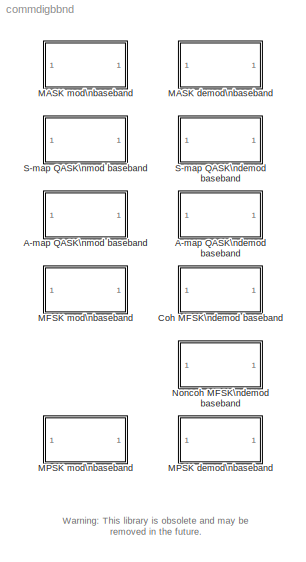
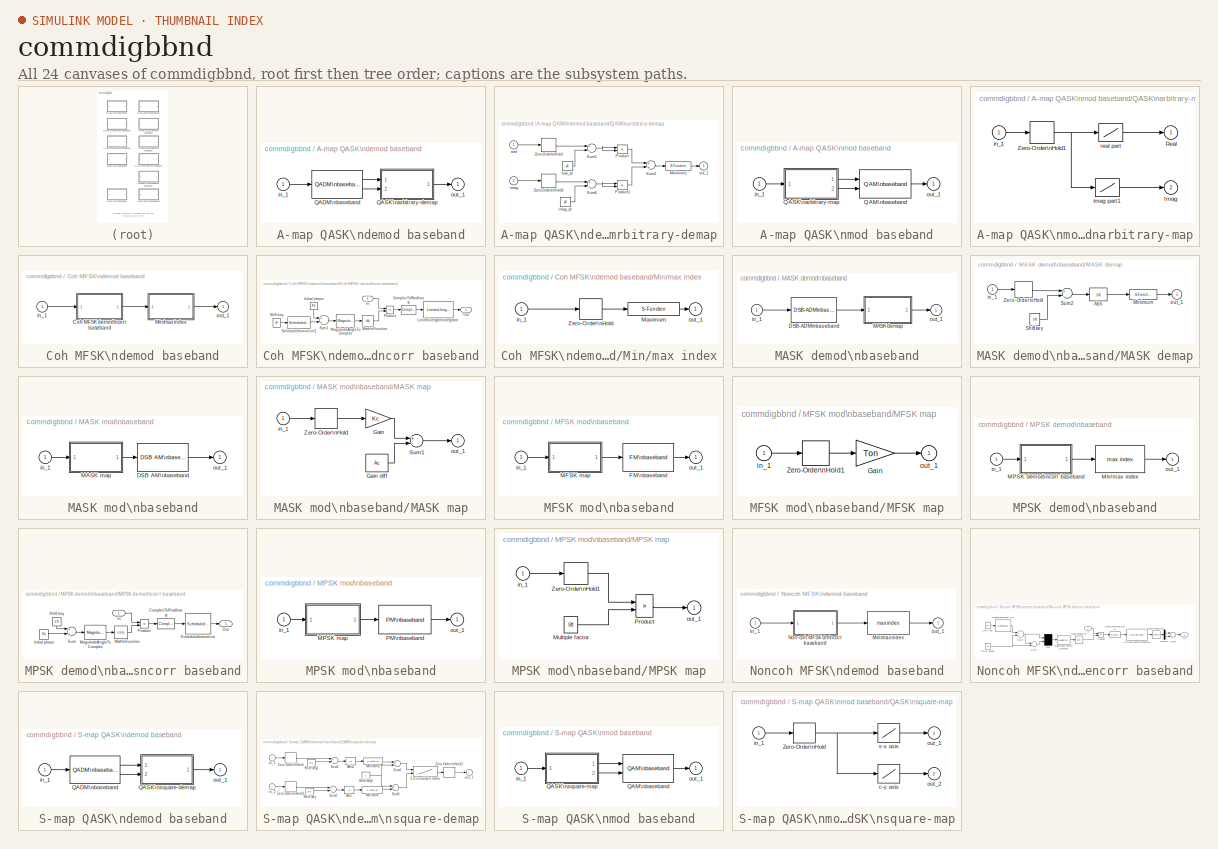
[diagram: thumbnail index - all 24 canvases of the model, root first then tree order]
MODEL commdigbbnd
KIND library
BLOCK [SubSystem] A-map QASK\ndemod baseband
  MaskCallbackString = |||||
  MaskDescription = Demodulate the complex envelope of a QASK modulated signal. The arbitrary constellation is defined by in-phase and quadrature vectors.
  MaskDisplay = plot(0,0,100,100,[5+1.5*[[0:.8:10] [10 20] [20:.8:30]] 50 50 50 50+15*[0 1 1 2 2 3]],[85+10*[sin([0:.8:10]*pi*2/5) 0 0 sin([20:.8:30]*pi*2/5)] 85 99 75 85+8*[1 1 -1 -1 1 1]]);\ndisp('A-QASK')
  MaskEnableString = on,on,on,on,on,on
  MaskHelp = This block demodulates the complex envelope of a QASK modulated signal with user-defined arbitrary constellation. The vector length of the in-phase and quadrature components vectors should have the same length. The outputs are integers in the range [0, M-1], where M is the vector length of in-phase or quadrature. When the symbol interval is a two-element vector, the second element is the offset (d...<+10ch>
  MaskIconFrame = on
  MaskIconOpaque = on
  MaskIconRotate = none
  MaskIconUnits = autoscale
  MaskInitialization = den=num(2,:);num=num(1,:);\n\n
  MaskPromptString = Constellation in-phase component:|Constellation quadrature component:|Symbol interval and offset (sec):|Lowpass filter [num; den], a 2 row matrix:|Initial phase (rad):|Sample time (sec):
  MaskStyleString = edit,edit,edit,edit,edit,edit
  MaskToolTipString = on,on,on,on,on,on
  MaskTunableValueString = on,on,on,on,on,on
  MaskType = Baseband A-QASK demodulation
  MaskValueString = real(exp(j*[0:16-1]/16*pi*2))|imag(exp(j*[0:16-1]/16*pi*2))|0.1|[1;1]|0|0.001
  MaskVarAliasString = ,,,,,
  MaskVariables = y1=@1;y2=@2;td=@3;num=@4;Ph=@5;ts=@6;
  MaskVisibilityString = on,on,on,on,on,on
  Ports = [1, 1]
  TreatAsAtomicUnit = off
BLOCK [Reference] A-map QASK\ndemod baseband/QADM\nbaseband  REF=commanabbnd/QADM\nbaseband
  Ph = Ph
  Ports = [1, 2]
  SourceBlock = commanabbnd/QADM\nbaseband
  SourceType = QM DSB-SC ADM CE
  den = den
  num = num
  ts = ts
BLOCK [SubSystem] A-map QASK\ndemod baseband/QASK\narbitrary-demap
  MaskCallbackString = ||
  MaskDescription = Reverse the QASK map. Input in-phase and quadrature components from the two inputs. Output demapped signal.
  MaskDisplay = disp('QASK\\nA-demap')
  MaskEnableString = on,on,on
  MaskHelp = This block demaps a QASK mapped signal using user defined arbitrary constellation. You can place this block after a QAM demodulation block. The in-phase and quadrature constellation vectors must have the same length, which equals to M, the M-ary number of the QASK. The output symbols are integers in the range [0, M-1]. The symbol interval can be a two elements vector with the first element being o...<+34ch>
  MaskIconFrame = on
  MaskIconOpaque = on
  MaskIconRotate = none
  MaskIconUnits = autoscale
  MaskPromptString = Constellation for in-phase component:|Constellation for quadrature component:|Symbol interval and offset (sec):
  MaskStyleString = edit,edit,edit
  MaskToolTipString = on,on,on
  MaskTunableValueString = on,on,on
  MaskType = QASK A-demap
  MaskValueString = y1|y2|td
  MaskVarAliasString = ,,
  MaskVariables = y1=@1;y2=@2;td=@3;
  MaskVisibilityString = on,on,on
  Ports = [2, 1]
  TreatAsAtomicUnit = off
BLOCK [S-Function] A-map QASK\ndemod baseband/QASK\narbitrary-demap/Minimum1
  FunctionName = arymimai
  Parameters = 'min'
  Ports = [1, 1]
BLOCK [Product] A-map QASK\ndemod baseband/QASK\narbitrary-demap/Product
  Ports = [2, 1]
BLOCK [Product] A-map QASK\ndemod baseband/QASK\narbitrary-demap/Product1
  Ports = [2, 1]
BLOCK [Sum] A-map QASK\ndemod baseband/QASK\narbitrary-demap/Sum1
  Inputs = +-
  Ports = [2, 1]
BLOCK [Sum] A-map QASK\ndemod baseband/QASK\narbitrary-demap/Sum2
  Ports = [2, 1]
BLOCK [Sum] A-map QASK\ndemod baseband/QASK\narbitrary-demap/Sum6
  Inputs = +-
  Ports = [2, 1]
BLOCK [ZeroOrderHold] A-map QASK\ndemod baseband/QASK\narbitrary-demap/Zero-Order\nHold
  SampleTime = td
BLOCK [ZeroOrderHold] A-map QASK\ndemod baseband/QASK\narbitrary-demap/Zero-Order\nHold1
  SampleTime = td
BLOCK [Inport] A-map QASK\ndemod baseband/QASK\narbitrary-demap/imag
  Port = 2
BLOCK [Constant] A-map QASK\ndemod baseband/QASK\narbitrary-demap/imag_pt
  Value = y2
BLOCK [Outport] A-map QASK\ndemod baseband/QASK\narbitrary-demap/out_1
  InitialOutput = 0
BLOCK [Inport] A-map QASK\ndemod baseband/QASK\narbitrary-demap/real
BLOCK [Constant] A-map QASK\ndemod baseband/QASK\narbitrary-demap/real_pt
  Value = y1
BLOCK [Inport] A-map QASK\ndemod baseband/in_1
BLOCK [Outport] A-map QASK\ndemod baseband/out_1
  InitialOutput = 0
BLOCK [SubSystem] A-map QASK\nmod baseband
  MaskCallbackString = ||||
  MaskDescription = Output the complex envelope of QASK modulation. The arbitrary constellation is defined by in-phase and quadrature vectors.
  MaskDisplay = plot(0,0,100,100,[5+15*[0 1 1 2 2 3] 50 50 50 50+1.5*[[0:.8:10] [10 20] [20:.8:30]]],[85+8*[1 1 -1 -1 1 1] 85 99 75 85+10*[sin([0:.8:10]*pi*2/5) 0 0 sin([20:.8:30]*pi*2/5)]]);\ndisp('A-QASK')
  MaskEnableString = on,on,on,on,on
  MaskHelp = This block outputs the complex envelope of a QASK modulated signal with user-defined arbitrary constellation. The vector length of the in-phase and quadrature components vectors should be the same length. The inputs are integers in the range [0, M-1], where M is the vector length of in-phase or quadrature. When the symbol interval is a two-element vector, the second element is the offset (default ...<+3ch>
  MaskIconFrame = on
  MaskIconOpaque = on
  MaskIconRotate = none
  MaskIconUnits = autoscale
  MaskPromptString = Constellation in-phase component:|Constellation quadrature component:|Input symbol interval and offset (sec):|Initial phase (rad):|Sample time (sec):
  MaskStyleString = edit,edit,edit,edit,edit
  MaskToolTipString = on,on,on,on,on
  MaskTunableValueString = on,on,on,on,on
  MaskType = Baseband A-QASK modulation
  MaskValueString = real(exp(j*[0:16-1]/16*pi*2))|imag(exp(j*[0:16-1]/16*pi*2))|0.1|0|0.001
  MaskVarAliasString = ,,,,
  MaskVariables = y1=@1;y2=@2;td=@3;Ph=@4;ts=@5;
  MaskVisibilityString = on,on,on,on,on
  Ports = [1, 1]
  TreatAsAtomicUnit = off
BLOCK [Reference] A-map QASK\nmod baseband/QAM\nbaseband  REF=commanabbnd/QAM\nbaseband
  Ph = Ph
  Ports = [2, 1]
  SourceBlock = commanabbnd/QAM\nbaseband
  SourceType = QM DSB-SC AM CE
BLOCK [SubSystem] A-map QASK\nmod baseband/QASK\narbitrary-map
  MaskCallbackString = ||
  MaskDescription = QASK mapping for arbitrary defined map. Assume input digit is K. 1st outport outputs in-phase(K+1). 2nd outport outputs quadrature(K+1).
  MaskDisplay = disp('QASK\\nA-map')
  MaskEnableString = on,on,on
  MaskHelp = This block maps a digital signal onto in-phase and quadratic components, which are outputs in the first and second output port respectively. The in-phase and quadrature constellation vectors must have the same length, which equals to M, the M-ary number of the QASK. The input signal is in the range of [0, M-1]. The symbol interval can be a two elements vector with the first element being offset. T...<+26ch>
  MaskIconFrame = on
  MaskIconOpaque = on
  MaskIconRotate = none
  MaskIconUnits = autoscale
  MaskInitialization = ly=length(y1);x=[-10 1:ly-1;1:ly-1 10*ly]-.5;x=x(:);y1=y1(:)';y1=[y1;y1];y1=y1(:);y2=y2(:)';y2=[y2;y2];y2=y2(:);
  MaskPromptString = Constellation for in-phase component:|Constellation for quadrature component:|Symbol interval and offset (sec):
  MaskStyleString = edit,edit,edit
  MaskToolTipString = on,on,on
  MaskTunableValueString = on,on,on
  MaskType = QASK A-map
  MaskValueString = y1|y2|td
  MaskVarAliasString = ,,
  MaskVariables = y1=@1;y2=@2;td=@3;
  MaskVisibilityString = on,on,on
  Ports = [1, 2]
  TreatAsAtomicUnit = off
BLOCK [Outport] A-map QASK\nmod baseband/QASK\narbitrary-map/Imag
  InitialOutput = 0
  Port = 2
BLOCK [Outport] A-map QASK\nmod baseband/QASK\narbitrary-map/Real
  InitialOutput = 0
BLOCK [ZeroOrderHold] A-map QASK\nmod baseband/QASK\narbitrary-map/Zero-Order\nHold1
  SampleTime = td
BLOCK [Lookup] A-map QASK\nmod baseband/QASK\narbitrary-map/imag part1
  InputValues = x
  OutputValues = y2
BLOCK [Inport] A-map QASK\nmod baseband/QASK\narbitrary-map/in_1
BLOCK [Lookup] A-map QASK\nmod baseband/QASK\narbitrary-map/real part
  InputValues = x
  OutputValues = y1
BLOCK [Inport] A-map QASK\nmod baseband/in_1
BLOCK [Outport] A-map QASK\nmod baseband/out_1
  InitialOutput = 0
BLOCK [SubSystem] Coh MFSK\ndemod baseband
  MaskCallbackString = ||||
  MaskDescription = Demodulate the complex envelope of a MFSK modulated signal using coherent correlation method.
  MaskDisplay = plot(0,0,100,100,[5+1.5*[[0:.8:10] [10:1.6:20] [20:.8:30]] 50 50 50 50+15*[0 1 1 2 2 3]],[85+10*[sin([0:.8:10]*pi*2/5) sin([10:1.6:20]*pi/5) sin([20:.8:30]*pi*2/5)] 85 99 75 85+8*[1 1 -1 -1 1 1]]);\ndisp(' Co-MFSK')
  MaskEnableString = on,on,on,on,on
  MaskHelp = This block demodulates the complex envelope of a MFSK modulated signal using coherent method. The coherence demodulation method is phase sensitive. The tone space is the frequency distance between two successive after the modulation. The inputs are integers in the range [0, M-1], where M is the M-ary number. When the symbol interval is a two-element vector, the second element is the offset (defaul...<+5ch>
  MaskIconFrame = on
  MaskIconOpaque = on
  MaskIconRotate = none
  MaskIconUnits = autoscale
  MaskPromptString = M-ary number (output digits in range [0, M-1]):|Tone space (Hz):|Symbol interval (sec):|Initial phase (rad):|Sample time (sec):
  MaskStyleString = edit,edit,edit,edit,edit
  MaskToolTipString = on,on,on,on,on
  MaskTunableValueString = on,on,on,on,on
  MaskType = Baseband coherent MFSK demodulation
  MaskValueString = 16|16/.2/5|0.1|0|0.001
  MaskVarAliasString = ,,,,
  MaskVariables = M=@1;Ton=@2;td=@3;Ph=@4;ts=@5;
  MaskVisibilityString = on,on,on,on,on
  Ports = [1, 1]
  TreatAsAtomicUnit = off
BLOCK [SubSystem] Coh MFSK\ndemod baseband/Coh MFSK demod\ncorr baseband
  MaskCallbackString = ||||
  MaskDescription = Compute baseband MFSK correlation. Take MFSK CE modulated signal. Output a vector of correlation result.
  MaskDisplay = plot(0,0,100,100,[4 16 10 4 16 10 10 10],[54 46 50 46 54 50 58 42]);\ndisp('   Co MFSK')
  MaskEnableString = on,on,on,on,on
  MaskHelp = This block calculates the coherent correlation value of the input signal with a vector of sinusoidal signals. These sinusoidal signals have their frequency the same as that of FM modulated signal of possible resulting digits. The output is an M length vector. M is the M-ary number. The MFSK demodulation result is the index of the largest output. The computation is phase sensitive. The input of thi...<+26ch>
  MaskIconFrame = on
  MaskIconOpaque = on
  MaskIconRotate = none
  MaskIconUnits = autoscale
  MaskInitialization = pi2=2*pi;sft=[0:N-1]*Ton*pi2;[u,v]=cmplxicn(0,50,get_param(gcb,'orientation'));
  MaskPromptString = M-ary number (input in range [0, M-1]):|Tone space (Hz):|Symbol interval and offset (sec):|Initial phase (rad):|Sample time (sec):
  MaskStyleString = edit,edit,edit,edit,edit
  MaskToolTipString = on,on,on,on,on
  MaskTunableValueString = on,on,on,on,on
  MaskType = Baseband coherent MFSK correlation
  MaskValueString = M|Ton|td|Ph|ts
  MaskVarAliasString = ,,,,
  MaskVariables = N=@1;Ton=@2;td=@3;Ph=@4;ts=@5;
  MaskVisibilityString = on,on,on,on,on
  Ports = [1, 1]
  TreatAsAtomicUnit = off
BLOCK [ComplexToRealImag] Coh MFSK\ndemod baseband/Coh MFSK demod\ncorr baseband/ComplexToRealImag
  Output = Real
  Ports = [1, 1]
BLOCK [Inport] Coh MFSK\ndemod baseband/Coh MFSK demod\ncorr baseband/In
BLOCK [Constant] Coh MFSK\ndemod baseband/Coh MFSK demod\ncorr baseband/Initial phase
  Value = Ph
BLOCK [Reference] Coh MFSK\ndemod baseband/Coh MFSK demod\ncorr baseband/Limited-length\nintegrator  REF=commutil/Limited-length\nintegrator
  Ports = [1, 1]
  SourceBlock = commutil/Limited-length\nintegrator
  SourceType = Windowed integration
  T = td
  method = 'backward'
  sample_time = ts
  vec = N
BLOCK [MagnitudeAngleToComplex] Coh MFSK\ndemod baseband/Coh MFSK demod\ncorr baseband/MagnitudeAngleToComplex
  ConstantPart = 1
  Input = Angle
  Ports = [1, 1]
BLOCK [Math] Coh MFSK\ndemod baseband/Coh MFSK demod\ncorr baseband/Math\nFunction
  Operator = conj
  Ports = [1, 1]
BLOCK [Outport] Coh MFSK\ndemod baseband/Coh MFSK demod\ncorr baseband/Out
  InitialOutput = 0
BLOCK [Product] Coh MFSK\ndemod baseband/Coh MFSK demod\ncorr baseband/Product
  Ports = [2, 1]
BLOCK [Reference] Coh MFSK\ndemod baseband/Coh MFSK demod\ncorr baseband/Scheduled\nreset-int1  REF=commutil/Scheduled\nreset-int
  Ports = [1, 1]
  SourceBlock = commutil/Scheduled\nreset-int
  SourceType = Scheduled reset integration
  limit = Inf
  td = td
  ts = ts
BLOCK [Constant] Coh MFSK\ndemod baseband/Coh MFSK demod\ncorr baseband/Shift key
  Value = sft
BLOCK [Sum] Coh MFSK\ndemod baseband/Coh MFSK demod\ncorr baseband/Sum1
  Ports = [2, 1]
BLOCK [SubSystem] Coh MFSK\ndemod baseband/Min//max index
  MaskCallbackString = |
  MaskDescription = Choose the index of the input vector with max/min value at sampling point. Hold the value for the rest of the period.
  MaskDisplay = disp('Min/Max\\ndemap')
  MaskEnableString = on,on
  MaskHelp = This block outputs the index of the vector element that has the maximum or minimum value in the input vector. The computation starts at the sampling time point. The block holds the value for the rest of the interval.
  MaskIconFrame = on
  MaskIconOpaque = on
  MaskIconRotate = none
  MaskIconUnits = autoscale
  MaskPromptString = Symbol interval (sec):|'max' or 'min':
  MaskStyleString = edit,edit
  MaskToolTipString = on,on
  MaskTunableValueString = on,on
  MaskType = Maximum/minimum index.
  MaskValueString = td|'max'
  MaskVarAliasString = ,
  MaskVariables = td=@1;mima=@2;
  MaskVisibilityString = on,on
  Ports = [1, 1]
  TreatAsAtomicUnit = off
BLOCK [S-Function] Coh MFSK\ndemod baseband/Min//max index/Maximum
  FunctionName = arymimai
  Parameters = mima
  Ports = [1, 1]
BLOCK [ZeroOrderHold] Coh MFSK\ndemod baseband/Min//max index/Zero-Order\nHold
  SampleTime = td
BLOCK [Inport] Coh MFSK\ndemod baseband/Min//max index/in_1
BLOCK [Outport] Coh MFSK\ndemod baseband/Min//max index/out_1
  InitialOutput = 0
BLOCK [Inport] Coh MFSK\ndemod baseband/in_1
BLOCK [Outport] Coh MFSK\ndemod baseband/out_1
  InitialOutput = 0
BLOCK [SubSystem] MASK demod\nbaseband
  MaskCallbackString = |||||
  MaskDescription = Demodulate the complex envelope of a MASK modulated signal.
  MaskDisplay = plot(0,0,100,100,[5+1.5*[[0:.8:10] [10 20] [20:.8:30]] 50 50 50 50+15*[0 1 1 2 2 3]],[85+10*[sin([0:.8:10]*pi*2/5) 0 0 sin([20:.8:30]*pi*2/5)] 85 99 75 85+8*[1 1 -1 -1 1 1]]);\ndisp('MASK')
  MaskEnableString = on,on,on,on,on,on
  MaskHelp = This block demodulates the complex envelope of a MASK modulated signal. The output signal are digits in the range [0, M-1]. When the output symbol interval is a two-element vector, the second element is the offset (default 0). A lowpass filter is required in the demodulation. You can set both numerator and denominator to one for not using the lowpass filter.
  MaskIconFrame = on
  MaskIconOpaque = on
  MaskIconRotate = none
  MaskIconUnits = autoscale
  MaskPromptString = M-ary number (output integer in range [0, M-1]):|Output symbol interval and offset (sec):|Initial phase (rad):|Lowpass filter numerator:|Lowpass filter denominator:|Filter sample time (sec):
  MaskStyleString = edit,edit,edit,edit,edit,edit
  MaskToolTipString = on,on,on,on,on,on
  MaskTunableValueString = on,on,on,on,on,on
  MaskType = Baseband MASK demodulation
  MaskValueString = 16|[.1, .1-.01]|0|1|1|0.001
  MaskVarAliasString = ,,,,,
  MaskVariables = M=@1;td=@2;Ph=@3;num=@4;den=@5;ts=@6;
  MaskVisibilityString = on,on,on,on,on,on
  Ports = [1, 1]
  TreatAsAtomicUnit = off
BLOCK [Reference] MASK demod\nbaseband/DSB-ADM\nbaseband  REF=commanabbnd/DSB-ADM\nbaseband
  Ph = Ph
  Ports = [1, 1]
  SourceBlock = commanabbnd/DSB-ADM\nbaseband
  SourceType = DSB-SC ADM CE
  den = den
  num = num
  ts = ts
BLOCK [SubSystem] MASK demod\nbaseband/MASK demap
  MaskCallbackString = |
  MaskDescription = Reverse the MASK mapping process. Convert [-1 1] analog signal to [0, M-1] symbols.
  MaskDisplay = disp('MASK\\ndemap')
  MaskEnableString = on,on
  MaskHelp = This block demaps a MASK mapped signal back to digit symbols. You can place this block after a amplitude demodulation block. The input of this block is an analog signal in the range [-1, 1]. The demodulation decides the closest integer fitting in [0,M-1] range. When the input symbol interval is a two-elements vector, the second element is offset. The default offset value is 0.
  MaskIconFrame = on
  MaskIconOpaque = on
  MaskIconRotate = none
  MaskIconUnits = autoscale
  MaskInitialization = Ac=1;sft=[0:M-1]*Ac*2/(M-1)-Ac;
  MaskPromptString = M-ary number (output integer in range [0, M-1]):|Output symbol interval and offset (sec):
  MaskStyleString = edit,edit
  MaskToolTipString = on,on
  MaskTunableValueString = on,on
  MaskType = MASK demap
  MaskValueString = M|td
  MaskVarAliasString = ,
  MaskVariables = M=@1;td=@2;
  MaskVisibilityString = on,on
  Ports = [1, 1]
  TreatAsAtomicUnit = off
BLOCK [Abs] MASK demod\nbaseband/MASK demap/Abs
BLOCK [S-Function] MASK demod\nbaseband/MASK demap/Minimum
  FunctionName = arymimai
  Parameters = 'min'
  Ports = [1, 1]
BLOCK [Constant] MASK demod\nbaseband/MASK demap/Shift key
  Value = sft
BLOCK [Sum] MASK demod\nbaseband/MASK demap/Sum2
  Inputs = +-
  Ports = [2, 1]
BLOCK [ZeroOrderHold] MASK demod\nbaseband/MASK demap/Zero-Order\nHold
  SampleTime = td
BLOCK [Inport] MASK demod\nbaseband/MASK demap/in_1
BLOCK [Outport] MASK demod\nbaseband/MASK demap/out_1
  InitialOutput = 0
BLOCK [Inport] MASK demod\nbaseband/in_1
BLOCK [Outport] MASK demod\nbaseband/out_1
  InitialOutput = 0
BLOCK [SubSystem] MASK mod\nbaseband
  MaskCallbackString = ||
  MaskDescription = Output the complex envelope of the amplitude shift keying modulated signal.
  MaskDisplay = plot(0,0,100,100,[5+15*[0 1 1 2 2 3] 50 50 50 50+1.5*[[0:.8:10] [10 20] [20:.8:30]]],[85+8*[1 1 -1 -1 1 1] 85 99 75 85+10*[sin([0:.8:10]*pi*2/5) 0 0 sin([20:.8:30]*pi*2/5)]]);\ndisp('MASK')
  MaskEnableString = on,on,on
  MaskHelp = This block outputs the complex envelope of MASK modulated signal. The inputs are integers in the range [0, M-1], where M is the M-ary number. The maximum amplitude of the output is 1. When the symbol interval is a two-element vector, the second element is the offset (default 0). The block takes the input value at the sampling time point.
  MaskIconFrame = on
  MaskIconOpaque = on
  MaskIconRotate = port
  MaskIconUnits = autoscale
  MaskInitialization = \n
  MaskPromptString = M-ary number (input integers in the range [0, M-1]):|Input symbol interval and offset (sec):|Initial phase (rad):
  MaskStyleString = edit,edit,edit
  MaskToolTipString = on,on,on
  MaskTunableValueString = on,on,on
  MaskType = Baseband MASK modulation
  MaskValueString = 16|0.1|0
  MaskVarAliasString = ,,
  MaskVariables = M=@1;td=@2;Ph=@3;
  MaskVisibilityString = on,on,on
  Ports = [1, 1]
  TreatAsAtomicUnit = off
BLOCK [Reference] MASK mod\nbaseband/DSB AM\nbaseband  REF=commanabbnd/DSB AM\nbaseband
  Ph = Ph
  Ports = [1, 1]
  SourceBlock = commanabbnd/DSB AM\nbaseband
  SourceType = DSB-SC AM CE
BLOCK [SubSystem] MASK mod\nbaseband/MASK map
  MaskCallbackString = |
  MaskDescription = Map a digital symbol onto an analog signal in the range [-1, 1] using M-ary amplitude shift keying modulation mapping.
  MaskDisplay = disp('MASK\\nmap')
  MaskEnableString = on,on
  MaskHelp = This block maps an input digit signal onto a signal in the range [-1, 1]. The coded signal can be modulated using analog\\nmodulation blocks. Input digits are in the range [0, M-1], where M is the M-ary number. The input symbol interval can be a two-element vector with the second element being offset. The default value offset is 0. Use the MODMAP function to see the constellation.
  MaskIconFrame = on
  MaskIconOpaque = on
  MaskIconRotate = none
  MaskIconUnits = autoscale
  MaskInitialization = Ac=1;Kc=Ac*2/(N-1);
  MaskPromptString = M-ary number (input integers in range [0, M-1]):|Input symbol interval and offset (sec):
  MaskStyleString = edit,edit
  MaskToolTipString = on,on
  MaskTunableValueString = on,on
  MaskType = MASK map
  MaskValueString = M|td
  MaskVarAliasString = ,
  MaskVariables = N=@1;td=@2;
  MaskVisibilityString = on,on
  Ports = [1, 1]
  TreatAsAtomicUnit = off
BLOCK [Gain] MASK mod\nbaseband/MASK map/Gain
  Gain = Kc
BLOCK [Constant] MASK mod\nbaseband/MASK map/Gain diff
  Value = Ac
BLOCK [Sum] MASK mod\nbaseband/MASK map/Sum1
  Inputs = +-
  Ports = [2, 1]
BLOCK [ZeroOrderHold] MASK mod\nbaseband/MASK map/Zero-Order\nHold
  SampleTime = td
BLOCK [Inport] MASK mod\nbaseband/MASK map/in_1
BLOCK [Outport] MASK mod\nbaseband/MASK map/out_1
  InitialOutput = 0
BLOCK [Inport] MASK mod\nbaseband/in_1
BLOCK [Outport] MASK mod\nbaseband/out_1
  InitialOutput = 0
BLOCK [SubSystem] MFSK mod\nbaseband
  MaskCallbackString = |||
  MaskDescription = Output the complex envelope of the multiple-frequency shift keying modulation.
  MaskDisplay = plot(0,0,100,100,[5+15*[0 1 1 2 2 3] 50 50 50 50+1.5*[[0:.8:10] [10:1.6:20] [20:.8:30]]],[85+8*[1 1 -1 -1 1 1] 85 99 75 85+10*[sin([0:.8:10]*pi*2/5) sin([10:1.6:20]*pi/5) sin([20:.8:30]*pi*2/5)]]);\ndisp('MFSK')
  MaskEnableString = on,on,on,on
  MaskHelp = This block outputs the complex envelop of MFSK modulated signal. The input signal is integers in the range [0, M-1]. The maximum amplitude of the output is 1. When the symbol interval is a two-element vector, the second element is the offset (default 0). The block takes the input value at the sampling time point.
  MaskIconFrame = on
  MaskIconOpaque = on
  MaskIconRotate = none
  MaskIconUnits = autoscale
  MaskInitialization = if isinf(td),td=realmax;end;\n
  MaskPromptString = Tone space(Hz):|Symbol interval (sec):|Initial phase (rad):|Sample time (sec):
  MaskStyleString = edit,edit,edit,edit
  MaskToolTipString = on,on,on,on
  MaskTunableValueString = on,on,on,on
  MaskType = Baseband MFSK modulation
  MaskValueString = 16/.2/5|0.1|0|0.001
  MaskVarAliasString = ,,,
  MaskVariables = Ton=@1;td=@2;Ph=@3;ts=@4;
  MaskVisibilityString = on,on,on,on
  Ports = [1, 1]
  TreatAsAtomicUnit = off
BLOCK [Reference] MFSK mod\nbaseband/FM\nbaseband  REF=commanabbnd/FM\nbaseband
  HzPerV = 1
  Ph = Ph
  Ports = [1, 1]
  SourceBlock = commanabbnd/FM\nbaseband
  SourceType = FM CE
  td = td
  ts = ts
BLOCK [SubSystem] MFSK mod\nbaseband/MFSK map
  MaskCallbackString = |
  MaskDescription = Map input digital signal to analog tone space for FM modulation. The tone space is the frequency distance between two consective digit numbers.
  MaskDisplay = disp('MFSK\\nmap')
  MaskEnableString = on,on
  MaskHelp = This block maps the input digital signal to the analog signal, which is ready for the FM modulation. The input are integers in the range [0, M-1], where M is the M-ary number. Tone space is the frequency separation between two consective digits for the input signal. After FM, the modulated signal has a frequency in the range of [Fc, Fc+B]. B is the bandwidth of the FSK, B=(M-1) * Tone_space.
  MaskIconFrame = on
  MaskIconOpaque = on
  MaskIconRotate = none
  MaskIconUnits = autoscale
  MaskPromptString = Tone space (Hz):|Input symbol interval and offset (sec):
  MaskStyleString = edit,edit
  MaskToolTipString = on,on
  MaskTunableValueString = on,on
  MaskType = MFSK map
  MaskValueString = Ton|td
  MaskVarAliasString = ,
  MaskVariables = Ton=@1;td=@2;
  MaskVisibilityString = on,on
  Ports = [1, 1]
  TreatAsAtomicUnit = off
BLOCK [Gain] MFSK mod\nbaseband/MFSK map/Gain
  Gain = Ton
BLOCK [ZeroOrderHold] MFSK mod\nbaseband/MFSK map/Zero-Order\nHold1
  SampleTime = td
BLOCK [Inport] MFSK mod\nbaseband/MFSK map/in_1
BLOCK [Outport] MFSK mod\nbaseband/MFSK map/out_1
  InitialOutput = 0
BLOCK [Inport] MFSK mod\nbaseband/in_1
BLOCK [Outport] MFSK mod\nbaseband/out_1
  InitialOutput = 0
BLOCK [SubSystem] MPSK demod\nbaseband
  MaskCallbackString = |||
  MaskDescription = Demodulate the complex envelope of a MPSK modulated signal.
  MaskDisplay = plot(0,0,100,100,[5+1.5*[[0:.8:10] [10:1.6:20] [20:.8:30]] 50 50 50 50+15*[0 1 1 2 2 3]],[85+10*[sin([0:.8:10]*pi*2/5) sin([10:1.6:20]*pi/5) sin([20:.8:30]*pi*2/5)] 85 99 75 85+8*[1 1 -1 -1 1 1]]);\ndisp('MPSK')
  MaskEnableString = on,on,on,on
  MaskHelp = This block outputs the complex envelope of a MPSK modulated signal using correlation method. The output signal are digits in the range [0, M-1], where M is the M-ary number. When the symbol interval is a two-element vector, the second element is the offset (default 0).
  MaskIconFrame = on
  MaskIconOpaque = on
  MaskIconRotate = none
  MaskIconUnits = autoscale
  MaskPromptString = M-ary number (integer in range [0, M-1]):|Symbol interval and offset (sec):|Initial phase (rad):|Sample time (sec):
  MaskStyleString = edit,edit,edit,edit
  MaskToolTipString = on,on,on,on
  MaskTunableValueString = on,on,on,on
  MaskType = Baseband MPSK demodulation
  MaskValueString = 16|0.1|0|0.001
  MaskVarAliasString = ,,,
  MaskVariables = M=@1;td=@2;Ph=@3;ts=@4;
  MaskVisibilityString = on,on,on,on
  Ports = [1, 1]
  TreatAsAtomicUnit = off
BLOCK [SubSystem] MPSK demod\nbaseband/MPSK demod\ncorr baseband
  MaskCallbackString = |||
  MaskDescription = Compute Baseband MPSK correlation. Take MPSK CE modulated signal. Output a vector of correlation result.
  MaskDisplay = plot(0,0,100,100,[4 16 10 4 16 10 10 10],[54 46 50 46 54 50 58 42]);disp('  MPSK corr')
  MaskEnableString = on,on,on,on
  MaskHelp = This block calculates the correlation value of the input signal with a vector of sinusoidal signals. These sinusoidal signals have their phase shift the same as that of PM modulated signal of possible resulting digits. The output is an M length vector. M is the M-ary number. The MPSK demodulation result is the index of the largest output, using the Min/max demap block. The input of this block is c...<+14ch>
  MaskIconFrame = on
  MaskIconOpaque = on
  MaskIconRotate = none
  MaskIconUnits = autoscale
  MaskInitialization = pi2=2*pi;sft=[0:N-1]*pi2/N;\n
  MaskPromptString = M-ary number (integer in range [0, M-1]):|Symbol interval and offset (sec):|Initial phase (rad):|Sample time (sec):
  MaskStyleString = edit,edit,edit,edit
  MaskToolTipString = on,on,on,on
  MaskTunableValueString = on,on,on,on
  MaskType = Baseband MPSK correlationA
  MaskValueString = M|td|Ph|ts
  MaskVarAliasString = ,,,
  MaskVariables = N=@1;td=@2;Ph=@3;ts=@4;
  MaskVisibilityString = on,on,on,on
  Ports = [1, 1]
  TreatAsAtomicUnit = off
BLOCK [ComplexToRealImag] MPSK demod\nbaseband/MPSK demod\ncorr baseband/ComplexToRealImag
  Output = Real
  Ports = [1, 1]
BLOCK [Inport] MPSK demod\nbaseband/MPSK demod\ncorr baseband/In
BLOCK [Constant] MPSK demod\nbaseband/MPSK demod\ncorr baseband/Initial phase
  Value = Ph
BLOCK [MagnitudeAngleToComplex] MPSK demod\nbaseband/MPSK demod\ncorr baseband/MagnitudeAngleToComplex
  ConstantPart = 1
  Input = Angle
  Ports = [1, 1]
BLOCK [Math] MPSK demod\nbaseband/MPSK demod\ncorr baseband/Math\nFunction
  Operator = conj
  Ports = [1, 1]
BLOCK [Outport] MPSK demod\nbaseband/MPSK demod\ncorr baseband/Out
  InitialOutput = 0
BLOCK [Product] MPSK demod\nbaseband/MPSK demod\ncorr baseband/Product
  Ports = [2, 1]
BLOCK [Reference] MPSK demod\nbaseband/MPSK demod\ncorr baseband/Scheduled\nreset-int  REF=commutil/Scheduled\nreset-int
  Ports = [1, 1]
  SourceBlock = commutil/Scheduled\nreset-int
  SourceType = Scheduled reset integration
  limit = Inf
  td = td
  ts = ts
BLOCK [Constant] MPSK demod\nbaseband/MPSK demod\ncorr baseband/Shift key
  Value = sft
BLOCK [Sum] MPSK demod\nbaseband/MPSK demod\ncorr baseband/Sum
  Ports = [2, 1]
BLOCK [Reference] MPSK demod\nbaseband/Min//max index  REF=commdigbbnd/Coh MFSK\ndemod baseband/Min//max index
  Ports = [1, 1]
  SourceBlock = commdigbbnd/Coh MFSK\ndemod baseband/Min//max index
  SourceType = Maximum/minimum index.
  mima = 'max'
  td = td
BLOCK [Inport] MPSK demod\nbaseband/in_1
BLOCK [Outport] MPSK demod\nbaseband/out_1
  InitialOutput = 0
BLOCK [SubSystem] MPSK mod\nbaseband
  MaskCallbackString = ||
  MaskDescription = Output the complex envelope of the M-ary phase shift keying modulation.
  MaskDisplay = plot(0,0,100,100,[5+15*[0 1 1 2 2 3] 50 50 50 50+1.5*[[0:.8:10] [10:1.6:20] [20:.8:30]]],[85+8*[1 1 -1 -1 1 1] 85 99 75 85+10*[sin([0:.8:10]*pi*2/5) sin([10:1.6:20]*pi/5) sin([20:.8:30]*pi*2/5)]]);\ndisp('MPSK')
  MaskEnableString = on,on,on
  MaskHelp = This block outputs the complex envelope of MPSK modulated signal. The inputs are integers in the range [0, M-1], where M is the M-ary number. When the symbol interval is a two-element vector, the second element is the offset (default 0). The block keeps a same input value in the symbol interval.
  MaskIconFrame = on
  MaskIconOpaque = on
  MaskIconRotate = none
  MaskIconUnits = autoscale
  MaskPromptString = M-ary number (input integers in the range [0, M-1]):|Symbol interval and offset (sec):|Initial phase (rad):
  MaskStyleString = edit,edit,edit
  MaskToolTipString = on,on,on
  MaskTunableValueString = on,on,on
  MaskType = Baseband MPSK modulation
  MaskValueString = 16|0.1|0
  MaskVarAliasString = ,,
  MaskVariables = M=@1;td=@2;Ph=@3;
  MaskVisibilityString = on,on,on
  Ports = [1, 1]
  TreatAsAtomicUnit = off
BLOCK [SubSystem] MPSK mod\nbaseband/MPSK map
  MaskCallbackString = |
  MaskDescription = Map input digital signal to analog phase shift.
  MaskDisplay = disp('MPSK\\nmap')
  MaskEnableString = on,on
  MaskHelp = This block maps the input digital signal to the analog signal, which is ready for the PM modulation. The input are integers in the range [0, M-1], where M is the M-ary number. You can view the MPSK constellation using the MODMAP function.
  MaskIconFrame = on
  MaskIconOpaque = on
  MaskIconRotate = none
  MaskIconUnits = autoscale
  MaskInitialization = pi2=2*pi;Sft=pi2/@1;
  MaskPromptString = M-ary number (input integer in range [0, M-1]):|Input symbol interval and offset (sec):
  MaskStyleString = edit,edit
  MaskToolTipString = on,on
  MaskTunableValueString = on,on
  MaskType = MPSK map
  MaskValueString = M|td
  MaskVarAliasString = ,
  MaskVariables = td=@2;
  MaskVisibilityString = on,on
  Ports = [1, 1]
  TreatAsAtomicUnit = off
BLOCK [Constant] MPSK mod\nbaseband/MPSK map/Multiple factor
  Value = Sft
BLOCK [Product] MPSK mod\nbaseband/MPSK map/Product
  Ports = [2, 1]
BLOCK [ZeroOrderHold] MPSK mod\nbaseband/MPSK map/Zero-Order\nHold1
  SampleTime = td
BLOCK [Inport] MPSK mod\nbaseband/MPSK map/in_1
BLOCK [Outport] MPSK mod\nbaseband/MPSK map/out_1
  InitialOutput = 0
BLOCK [Reference] MPSK mod\nbaseband/PM\nbaseband  REF=commanabbnd/PM\nbaseband
  Kc = 1
  Ph = Ph
  Ports = [1, 1]
  SourceBlock = commanabbnd/PM\nbaseband
  SourceType = PM CE
BLOCK [Inport] MPSK mod\nbaseband/in_1
BLOCK [Outport] MPSK mod\nbaseband/out_1
  InitialOutput = 0
BLOCK [SubSystem] Noncoh MFSK\ndemod baseband
  MaskCallbackString = ||||
  MaskDescription = Demodulate the complex envelope of a MFSK modulated signal using noncoherent correlation method.
  MaskDisplay = plot(0,0,100,100,[5+1.5*[[0:.8:10] [10:1.6:20] [20:.8:30]] 50 50 50 50+15*[0 1 1 2 2 3]],[85+10*[sin([0:.8:10]*pi*2/5) sin([10:1.6:20]*pi/5) sin([20:.8:30]*pi*2/5)] 85 99 75 85+8*[1 1 -1 -1 1 1]]);\ndisp(' NC-MFSK')
  MaskEnableString = on,on,on,on,on
  MaskHelp = This block demodulates the complex envelope of a MFSK modulated signal using noncoherent method. The coherence demodulation method is phase insensitive. The tone space is the frequency distance between two successive after the modulation. The inputs are integers in the range [0, M-1], where M is the M-ary number. When the symbol interval is a two element vector, the second element is the offset (d...<+10ch>
  MaskIconFrame = on
  MaskIconOpaque = on
  MaskIconRotate = none
  MaskIconUnits = autoscale
  MaskPromptString = M-ary number (output digits in range [0, M-1]):|Tone space (Hz):|Symbol interval (sec):|Initial phase (rad):|Sample time (sec):
  MaskStyleString = edit,edit,edit,edit,edit
  MaskToolTipString = on,on,on,on,on
  MaskTunableValueString = on,on,on,on,on
  MaskType = Baseband noncoherent MFSK demodulation
  MaskValueString = 16|18/.2/5|0.1|0|0.001
  MaskVarAliasString = ,,,,
  MaskVariables = M=@1;Ton=@2;td=@3;Ph=@4;ts=@5;
  MaskVisibilityString = on,on,on,on,on
  Ports = [1, 1]
  TreatAsAtomicUnit = off
BLOCK [Reference] Noncoh MFSK\ndemod baseband/Min//max index  REF=commdigbbnd/Coh MFSK\ndemod baseband/Min//max index
  Ports = [1, 1]
  SourceBlock = commdigbbnd/Coh MFSK\ndemod baseband/Min//max index
  SourceType = Maximum/minimum index.
  mima = 'max'
  td = td
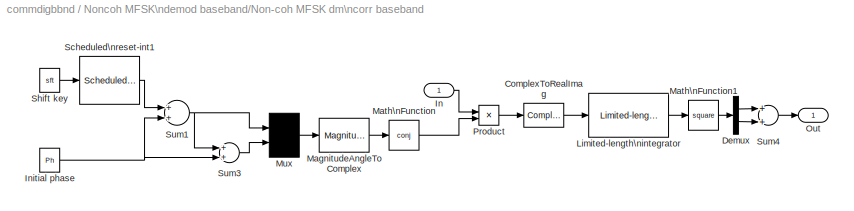
BLOCK [SubSystem] Noncoh MFSK\ndemod baseband/Non-coh MFSK dm\ncorr baseband
  MaskCallbackString = ||||
  MaskDescription = Compute baseband MFSK correlation. Take MFSK CE modulated signal. Output a vector of correlation result.
  MaskDisplay = plot(0,0,100,100, [4 16 10 4 16 10 10 10],[54 46 50 46 54 50 58 42]);\ndisp('  NC MFSK')
  MaskEnableString = on,on,on,on,on
  MaskHelp = This block calculates the noncoherent correlation value of the input signal with a vector of sinusoidal signals. These sinusoidal signals have their frequency the same as that of FM modulated signal of possible resulting digits. The output is an M length vector. M is the M-ary number. The MFSK demodulation result is the index of the largest output, using the Min/max demap block. The input of this ...<+24ch>
  MaskIconFrame = on
  MaskIconOpaque = on
  MaskIconRotate = none
  MaskIconUnits = autoscale
  MaskInitialization = pi2=2*pi;sft=[0:N-1]*Ton*pi2;\n
  MaskPromptString = M-ary number (input in range [0, M-1]):|Tone space (Hz):|Symbol interval and offset (sec):|Initial phase (rad):|Sample time (sec):
  MaskStyleString = edit,edit,edit,edit,edit
  MaskToolTipString = on,on,on,on,on
  MaskTunableValueString = on,on,on,on,on
  MaskType = Baseband non-coherent MFSK correlation
  MaskValueString = M|Ton|td|Ph|ts
  MaskVarAliasString = ,,,,
  MaskVariables = N=@1;Ton=@2;td=@3;Ph=@4;ts=@5;
  MaskVisibilityString = on,on,on,on,on
  Ports = [1, 1]
  TreatAsAtomicUnit = off
BLOCK [ComplexToRealImag] Noncoh MFSK\ndemod baseband/Non-coh MFSK dm\ncorr baseband/ComplexToRealImag
  Output = Real
  Ports = [1, 1]
BLOCK [Demux] Noncoh MFSK\ndemod baseband/Non-coh MFSK dm\ncorr baseband/Demux
  Outputs = 2
  Ports = [1, 2]
BLOCK [Inport] Noncoh MFSK\ndemod baseband/Non-coh MFSK dm\ncorr baseband/In
BLOCK [Constant] Noncoh MFSK\ndemod baseband/Non-coh MFSK dm\ncorr baseband/Initial phase
  Value = Ph
BLOCK [Reference] Noncoh MFSK\ndemod baseband/Non-coh MFSK dm\ncorr baseband/Limited-length\nintegrator  REF=commutil/Limited-length\nintegrator
  Ports = [1, 1]
  SourceBlock = commutil/Limited-length\nintegrator
  SourceType = Windowed integration
  T = td
  method = 'backward'
  sample_time = ts
  vec = N*2
BLOCK [MagnitudeAngleToComplex] Noncoh MFSK\ndemod baseband/Non-coh MFSK dm\ncorr baseband/MagnitudeAngleToComplex
  ConstantPart = 1
  Input = Angle
  Ports = [1, 1]
BLOCK [Math] Noncoh MFSK\ndemod baseband/Non-coh MFSK dm\ncorr baseband/Math\nFunction
  Operator = conj
  Ports = [1, 1]
BLOCK [Math] Noncoh MFSK\ndemod baseband/Non-coh MFSK dm\ncorr baseband/Math\nFunction1
  Operator = square
  Ports = [1, 1]
BLOCK [Mux] Noncoh MFSK\ndemod baseband/Non-coh MFSK dm\ncorr baseband/Mux
  Inputs = 2
  Ports = [2, 1]
BLOCK [Outport] Noncoh MFSK\ndemod baseband/Non-coh MFSK dm\ncorr baseband/Out
  InitialOutput = 0
BLOCK [Product] Noncoh MFSK\ndemod baseband/Non-coh MFSK dm\ncorr baseband/Product
  Ports = [2, 1]
BLOCK [Reference] Noncoh MFSK\ndemod baseband/Non-coh MFSK dm\ncorr baseband/Scheduled\nreset-int1  REF=commutil/Scheduled\nreset-int
  Ports = [1, 1]
  SourceBlock = commutil/Scheduled\nreset-int
  SourceType = Scheduled reset integration
  limit = Inf
  td = td
  ts = ts
BLOCK [Constant] Noncoh MFSK\ndemod baseband/Non-coh MFSK dm\ncorr baseband/Shift key
  Value = sft
BLOCK [Sum] Noncoh MFSK\ndemod baseband/Non-coh MFSK dm\ncorr baseband/Sum1
  Ports = [2, 1]
BLOCK [Sum] Noncoh MFSK\ndemod baseband/Non-coh MFSK dm\ncorr baseband/Sum3
  Ports = [2, 1]
BLOCK [Sum] Noncoh MFSK\ndemod baseband/Non-coh MFSK dm\ncorr baseband/Sum4
  Ports = [2, 1]
BLOCK [Inport] Noncoh MFSK\ndemod baseband/in_1
BLOCK [Outport] Noncoh MFSK\ndemod baseband/out_1
  InitialOutput = 0
BLOCK [SubSystem] S-map QASK\ndemod baseband
  MaskCallbackString = |||||
  MaskDescription = Demodulate the complex envelope of a QASK modulated signal.  This block uses a fixed square constellation with M-ary number M=2^K, where K is an integer.
  MaskDisplay = plot(0,0,100,100,[5+1.5*[[0:.8:10] [10 20] [20:.8:30]] 50 50 50 50+15*[0 1 1 2 2 3]],[85+10*[sin([0:.8:10]*pi*2/5) 0 0 sin([20:.8:30]*pi*2/5)] 85 99 75 85+8*[1 1 -1 -1 1 1]]);\ndisp('S-QASK')
  MaskEnableString = on,on,on,on,on,on
  MaskHelp = This block demodulates a QASK modulated signal using square constellation. The output signals are digits in the range [0, M-1], where M is the M-ary number, M=2^K, K is an integer. When the symbol interval is a two-element vector, the second element is the offset (default 0).
  MaskIconFrame = on
  MaskIconOpaque = on
  MaskIconRotate = none
  MaskIconUnits = autoscale
  MaskPromptString = M-ary number (integer in range [0 M-1]):|Symbol interval and offset (sec):|Lowpass filter numerator:|Lowpass filter denominator:|Initial phase (rad):|Sample time (sec):
  MaskStyleString = edit,edit,edit,edit,edit,edit
  MaskToolTipString = on,on,on,on,on,on
  MaskTunableValueString = on,on,on,on,on,on
  MaskType = Baseband S-QASK demodulation
  MaskValueString = 16|0.1|1|1|0|0.001
  MaskVarAliasString = ,,,,,
  MaskVariables = M=@1;td=@2;num=@3;den=@4;Ph=@5;ts=@6;
  MaskVisibilityString = on,on,on,on,on,on
  Ports = [1, 1]
  TreatAsAtomicUnit = off
BLOCK [Reference] S-map QASK\ndemod baseband/QADM\nbaseband  REF=commanabbnd/QADM\nbaseband
  Ph = Ph
  Ports = [1, 2]
  SourceBlock = commanabbnd/QADM\nbaseband
  SourceType = QM DSB-SC ADM CE
  den = den
  num = num
  ts = ts
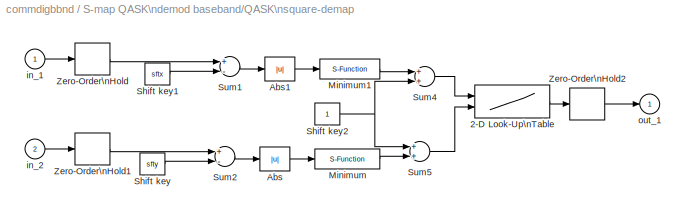
BLOCK [SubSystem] S-map QASK\ndemod baseband/QASK\nsquare-demap
  MaskCallbackString = |
  MaskDescription = Reverse the QASK map. Input in-phase and quadrature components from the two inputs. Output demapped signal.
  MaskDisplay = disp('QASK\\nS-demap')
  MaskEnableString = on,on
  MaskHelp = This block demaps a QASK mapped signal using square constellation. You can place this block after a QAM demodulation block. This block assumes the maximum amplitude of the input signals is 1. The output symbols are integers in the range [0, M-1]. The input symbol interval can be a two-element vector with the second element being offset. The default value offset is 0.
  MaskIconFrame = on
  MaskIconOpaque = on
  MaskIconRotate = none
  MaskIconUnits = autoscale
  MaskInitialization = Ac=1;K=log(N)/log(2);tab=flipud(constlay(K));[leny,lenx]=size(tab);sftx=[1:lenx]*2-lenx-1;sfty=[1:leny]*2-leny-1;xx=max(sftx);sftx=sftx/((xx==0)+xx)*Ac;yy=max(sfty);sfty=sfty/((yy==0)+yy)*Ac;x=[1:length(sftx)];y=[1:length(sfty)];\nif length(y)==1, y=[y;2*y];tab=[tab;tab];end;
  MaskPromptString = QASK M-ary number (outputs are in range [0, M-1]):|Output symbol interval and offset (sec):
  MaskStyleString = edit,edit
  MaskToolTipString = on,on
  MaskTunableValueString = on,on
  MaskType = QASK S-demap
  MaskValueString = M|td
  MaskVarAliasString = ,
  MaskVariables = N=@1;td=@2;
  MaskVisibilityString = on,on
  Ports = [2, 1]
  TreatAsAtomicUnit = off
BLOCK [Lookup2D] S-map QASK\ndemod baseband/QASK\nsquare-demap/2-D Look-Up\nTable
  ColumnIndex = y
  OutputValues = tab'
  RowIndex = x
BLOCK [Abs] S-map QASK\ndemod baseband/QASK\nsquare-demap/Abs
BLOCK [Abs] S-map QASK\ndemod baseband/QASK\nsquare-demap/Abs1
BLOCK [S-Function] S-map QASK\ndemod baseband/QASK\nsquare-demap/Minimum
  FunctionName = arymimai
  Parameters = 'min'
  Ports = [1, 1]
BLOCK [S-Function] S-map QASK\ndemod baseband/QASK\nsquare-demap/Minimum1
  FunctionName = arymimai
  Parameters = 'min'
  Ports = [1, 1]
BLOCK [Constant] S-map QASK\ndemod baseband/QASK\nsquare-demap/Shift key
  Value = sfty
BLOCK [Constant] S-map QASK\ndemod baseband/QASK\nsquare-demap/Shift key1
  Value = sftx
BLOCK [Constant] S-map QASK\ndemod baseband/QASK\nsquare-demap/Shift key2
BLOCK [Sum] S-map QASK\ndemod baseband/QASK\nsquare-demap/Sum1
  Inputs = +-
  Ports = [2, 1]
BLOCK [Sum] S-map QASK\ndemod baseband/QASK\nsquare-demap/Sum2
  Inputs = +-
  Ports = [2, 1]
BLOCK [Sum] S-map QASK\ndemod baseband/QASK\nsquare-demap/Sum4
  Ports = [2, 1]
BLOCK [Sum] S-map QASK\ndemod baseband/QASK\nsquare-demap/Sum5
  Ports = [2, 1]
BLOCK [ZeroOrderHold] S-map QASK\ndemod baseband/QASK\nsquare-demap/Zero-Order\nHold
  SampleTime = td
BLOCK [ZeroOrderHold] S-map QASK\ndemod baseband/QASK\nsquare-demap/Zero-Order\nHold1
  SampleTime = td
BLOCK [ZeroOrderHold] S-map QASK\ndemod baseband/QASK\nsquare-demap/Zero-Order\nHold2
  SampleTime = td
BLOCK [Inport] S-map QASK\ndemod baseband/QASK\nsquare-demap/in_1
BLOCK [Inport] S-map QASK\ndemod baseband/QASK\nsquare-demap/in_2
  Port = 2
BLOCK [Outport] S-map QASK\ndemod baseband/QASK\nsquare-demap/out_1
  InitialOutput = 0
BLOCK [Inport] S-map QASK\ndemod baseband/in_1
BLOCK [Outport] S-map QASK\ndemod baseband/out_1
  InitialOutput = 0
BLOCK [SubSystem] S-map QASK\nmod baseband
  MaskCallbackString = |||
  MaskDescription = Output the complex envelope of the QASK modulated signal. This block uses a square constellation with M-ary number M=2^K, K is an integer.
  MaskDisplay = plot(0,0,100,100,[5+15*[0 1 1 2 2 3] 50 50 50 50+1.5*[[0:.8:10] [10 20] [20:.8:30]]],[85+8*[1 1 -1 -1 1 1] 85 99 75 85+10*[sin([0:.8:10]*pi*2/5) 0 0 sin([20:.8:30]*pi*2/5)]]);\ndisp('S-QASK')
  MaskEnableString = on,on,on,on
  MaskHelp = This block outputs the complex envelope of a QASK modulated signal. This block uses square constellation. The inputs are integers in the range [0, M-1], where M is the M-ary number, M=2^K, and K is an integer. When the symbol interval is a two-element vector, the second element is the offset (default 0).
  MaskIconFrame = on
  MaskIconOpaque = on
  MaskIconRotate = none
  MaskIconUnits = autoscale
  MaskPromptString = M-ary number (input digits in range [0, M-1]):|Symbol interval and offset (sec):|Initial phase (rad):|Sample time (sec):
  MaskStyleString = edit,edit,edit,edit
  MaskToolTipString = on,on,on,on
  MaskTunableValueString = on,on,on,on
  MaskType = Baseband S-QASK modulation
  MaskValueString = 16|0.1|0|0.001
  MaskVarAliasString = ,,,
  MaskVariables = M=@1;td=@2;Ph=@3;ts=@4;
  MaskVisibilityString = on,on,on,on
  Ports = [1, 1]
  TreatAsAtomicUnit = off
BLOCK [Reference] S-map QASK\nmod baseband/QAM\nbaseband  REF=commanabbnd/QAM\nbaseband
  Ph = Ph
  Ports = [2, 1]
  SourceBlock = commanabbnd/QAM\nbaseband
  SourceType = QM DSB-SC AM CE
BLOCK [SubSystem] S-map QASK\nmod baseband/QASK\nsquare-map
  MaskCallbackString = |
  MaskDescription = Use square constellation to map the input digital signal into in-phase and quadrature components. M must be M=2^K with integer K.
  MaskDisplay = disp('QASK\\nS-map')
  MaskEnableString = on,on
  MaskHelp = This block maps a digital signal onto in-phase and quadratic components, which are outputs in the first and second output port respectively. The M-ary number must be M=2^K with integer K. The input symbol interval can be a two-element vector with the second element being offset. The default value offset is 0. The maximum amplitudes for the outputs are 1.
  MaskIconFrame = on
  MaskIconOpaque = on
  MaskIconRotate = none
  MaskIconUnits = autoscale
  MaskInitialization = Ac=1;z=[[1:N];[1:N]];z=z(:);[x,y]=qaskenco(z-1,N);z=z-1.5;z=[z(2:2*N);N-.5];xx=max(x);yy=max(y);x=x/((xx==0)+xx);y=y/((yy==0)+yy);
  MaskPromptString = M-ary number (input integers in range [0, M-1]):|Input symbol interval and offset (sec):
  MaskStyleString = edit,edit
  MaskToolTipString = on,on
  MaskTunableValueString = on,on
  MaskType = QASK S-map
  MaskValueString = M|td
  MaskVarAliasString = ,
  MaskVariables = N=@1;td=@2;
  MaskVisibilityString = on,on
  Ports = [1, 2]
  TreatAsAtomicUnit = off
BLOCK [ZeroOrderHold] S-map QASK\nmod baseband/QASK\nsquare-map/Zero-Order\nHold
  SampleTime = td
BLOCK [Lookup] S-map QASK\nmod baseband/QASK\nsquare-map/c-y axis
  InputValues = z
  OutputValues = y
BLOCK [Inport] S-map QASK\nmod baseband/QASK\nsquare-map/in_1
BLOCK [Outport] S-map QASK\nmod baseband/QASK\nsquare-map/out_1
  InitialOutput = 0
BLOCK [Outport] S-map QASK\nmod baseband/QASK\nsquare-map/out_2
  InitialOutput = 0
  Port = 2
BLOCK [Lookup] S-map QASK\nmod baseband/QASK\nsquare-map/s-x axis
  InputValues = z
  OutputValues = x
BLOCK [Inport] S-map QASK\nmod baseband/in_1
BLOCK [Outport] S-map QASK\nmod baseband/out_1
  InitialOutput = 0
ANNOTATION (root): Warning: This library is obsolete and may be\nremoved in the future.
LINE A-map QASK\ndemod baseband/QADM\nbaseband:1 -> A-map QASK\ndemod baseband/QASK\narbitrary-demap:1
LINE A-map QASK\ndemod baseband/QADM\nbaseband:2 -> A-map QASK\ndemod baseband/QASK\narbitrary-demap:2
LINE A-map QASK\ndemod baseband/QASK\narbitrary-demap/Minimum1:1 -> A-map QASK\ndemod baseband/QASK\narbitrary-demap/out_1:1
LINE A-map QASK\ndemod baseband/QASK\narbitrary-demap/Product1:1 -> A-map QASK\ndemod baseband/QASK\narbitrary-demap/Sum2:2
LINE A-map QASK\ndemod baseband/QASK\narbitrary-demap/Product:1 -> A-map QASK\ndemod baseband/QASK\narbitrary-demap/Sum2:1
NET A-map QASK\ndemod baseband/QASK\narbitrary-demap/Sum1:1 -> A-map QASK\ndemod baseband/QASK\narbitrary-demap/Product:1, A-map QASK\ndemod baseband/QASK\narbitrary-demap/Product:2
LINE A-map QASK\ndemod baseband/QASK\narbitrary-demap/Sum2:1 -> A-map QASK\ndemod baseband/QASK\narbitrary-demap/Minimum1:1
NET A-map QASK\ndemod baseband/QASK\narbitrary-demap/Sum6:1 -> A-map QASK\ndemod baseband/QASK\narbitrary-demap/Product1:1, A-map QASK\ndemod baseband/QASK\narbitrary-demap/Product1:2
LINE A-map QASK\ndemod baseband/QASK\narbitrary-demap/Zero-Order\nHold1:1 -> A-map QASK\ndemod baseband/QASK\narbitrary-demap/Sum6:1
LINE A-map QASK\ndemod baseband/QASK\narbitrary-demap/Zero-Order\nHold:1 -> A-map QASK\ndemod baseband/QASK\narbitrary-demap/Sum1:1
LINE A-map QASK\ndemod baseband/QASK\narbitrary-demap/imag:1 -> A-map QASK\ndemod baseband/QASK\narbitrary-demap/Zero-Order\nHold1:1
LINE A-map QASK\ndemod baseband/QASK\narbitrary-demap/imag_pt:1 -> A-map QASK\ndemod baseband/QASK\narbitrary-demap/Sum6:2
LINE A-map QASK\ndemod baseband/QASK\narbitrary-demap/real:1 -> A-map QASK\ndemod baseband/QASK\narbitrary-demap/Zero-Order\nHold:1
LINE A-map QASK\ndemod baseband/QASK\narbitrary-demap/real_pt:1 -> A-map QASK\ndemod baseband/QASK\narbitrary-demap/Sum1:2
LINE A-map QASK\ndemod baseband/QASK\narbitrary-demap:1 -> A-map QASK\ndemod baseband/out_1:1
LINE A-map QASK\ndemod baseband/in_1:1 -> A-map QASK\ndemod baseband/QADM\nbaseband:1
LINE A-map QASK\nmod baseband/QAM\nbaseband:1 -> A-map QASK\nmod baseband/out_1:1
NET A-map QASK\nmod baseband/QASK\narbitrary-map/Zero-Order\nHold1:1 -> A-map QASK\nmod baseband/QASK\narbitrary-map/imag part1:1, A-map QASK\nmod baseband/QASK\narbitrary-map/real part:1
LINE A-map QASK\nmod baseband/QASK\narbitrary-map/imag part1:1 -> A-map QASK\nmod baseband/QASK\narbitrary-map/Imag:1
LINE A-map QASK\nmod baseband/QASK\narbitrary-map/in_1:1 -> A-map QASK\nmod baseband/QASK\narbitrary-map/Zero-Order\nHold1:1
LINE A-map QASK\nmod baseband/QASK\narbitrary-map/real part:1 -> A-map QASK\nmod baseband/QASK\narbitrary-map/Real:1
LINE A-map QASK\nmod baseband/QASK\narbitrary-map:1 -> A-map QASK\nmod baseband/QAM\nbaseband:1
LINE A-map QASK\nmod baseband/QASK\narbitrary-map:2 -> A-map QASK\nmod baseband/QAM\nbaseband:2
LINE A-map QASK\nmod baseband/in_1:1 -> A-map QASK\nmod baseband/QASK\narbitrary-map:1
LINE Coh MFSK\ndemod baseband/Coh MFSK demod\ncorr baseband/ComplexToRealImag:1 -> Coh MFSK\ndemod baseband/Coh MFSK demod\ncorr baseband/Limited-length\nintegrator:1
LINE Coh MFSK\ndemod baseband/Coh MFSK demod\ncorr baseband/In:1 -> Coh MFSK\ndemod baseband/Coh MFSK demod\ncorr baseband/Product:1
LINE Coh MFSK\ndemod baseband/Coh MFSK demod\ncorr baseband/Initial phase:1 -> Coh MFSK\ndemod baseband/Coh MFSK demod\ncorr baseband/Sum1:1
LINE Coh MFSK\ndemod baseband/Coh MFSK demod\ncorr baseband/Limited-length\nintegrator:1 -> Coh MFSK\ndemod baseband/Coh MFSK demod\ncorr baseband/Out:1
LINE Coh MFSK\ndemod baseband/Coh MFSK demod\ncorr baseband/MagnitudeAngleToComplex:1 -> Coh MFSK\ndemod baseband/Coh MFSK demod\ncorr baseband/Math\nFunction:1
LINE Coh MFSK\ndemod baseband/Coh MFSK demod\ncorr baseband/Math\nFunction:1 -> Coh MFSK\ndemod baseband/Coh MFSK demod\ncorr baseband/Product:2
LINE Coh MFSK\ndemod baseband/Coh MFSK demod\ncorr baseband/Product:1 -> Coh MFSK\ndemod baseband/Coh MFSK demod\ncorr baseband/ComplexToRealImag:1
LINE Coh MFSK\ndemod baseband/Coh MFSK demod\ncorr baseband/Scheduled\nreset-int1:1 -> Coh MFSK\ndemod baseband/Coh MFSK demod\ncorr baseband/Sum1:2
LINE Coh MFSK\ndemod baseband/Coh MFSK demod\ncorr baseband/Shift key:1 -> Coh MFSK\ndemod baseband/Coh MFSK demod\ncorr baseband/Scheduled\nreset-int1:1
LINE Coh MFSK\ndemod baseband/Coh MFSK demod\ncorr baseband/Sum1:1 -> Coh MFSK\ndemod baseband/Coh MFSK demod\ncorr baseband/MagnitudeAngleToComplex:1
LINE Coh MFSK\ndemod baseband/Coh MFSK demod\ncorr baseband:1 -> Coh MFSK\ndemod baseband/Min//max index:1
LINE Coh MFSK\ndemod baseband/Min//max index/Maximum:1 -> Coh MFSK\ndemod baseband/Min//max index/out_1:1
LINE Coh MFSK\ndemod baseband/Min//max index/Zero-Order\nHold:1 -> Coh MFSK\ndemod baseband/Min//max index/Maximum:1
LINE Coh MFSK\ndemod baseband/Min//max index/in_1:1 -> Coh MFSK\ndemod baseband/Min//max index/Zero-Order\nHold:1
LINE Coh MFSK\ndemod baseband/Min//max index:1 -> Coh MFSK\ndemod baseband/out_1:1
LINE Coh MFSK\ndemod baseband/in_1:1 -> Coh MFSK\ndemod baseband/Coh MFSK demod\ncorr baseband:1
LINE MASK demod\nbaseband/DSB-ADM\nbaseband:1 -> MASK demod\nbaseband/MASK demap:1
LINE MASK demod\nbaseband/MASK demap/Abs:1 -> MASK demod\nbaseband/MASK demap/Minimum:1
LINE MASK demod\nbaseband/MASK demap/Minimum:1 -> MASK demod\nbaseband/MASK demap/out_1:1
LINE MASK demod\nbaseband/MASK demap/Shift key:1 -> MASK demod\nbaseband/MASK demap/Sum2:2
LINE MASK demod\nbaseband/MASK demap/Sum2:1 -> MASK demod\nbaseband/MASK demap/Abs:1
LINE MASK demod\nbaseband/MASK demap/Zero-Order\nHold:1 -> MASK demod\nbaseband/MASK demap/Sum2:1
LINE MASK demod\nbaseband/MASK demap/in_1:1 -> MASK demod\nbaseband/MASK demap/Zero-Order\nHold:1
LINE MASK demod\nbaseband/MASK demap:1 -> MASK demod\nbaseband/out_1:1
LINE MASK demod\nbaseband/in_1:1 -> MASK demod\nbaseband/DSB-ADM\nbaseband:1
LINE MASK mod\nbaseband/DSB AM\nbaseband:1 -> MASK mod\nbaseband/out_1:1
LINE MASK mod\nbaseband/MASK map/Gain diff:1 -> MASK mod\nbaseband/MASK map/Sum1:2
LINE MASK mod\nbaseband/MASK map/Gain:1 -> MASK mod\nbaseband/MASK map/Sum1:1
LINE MASK mod\nbaseband/MASK map/Sum1:1 -> MASK mod\nbaseband/MASK map/out_1:1
LINE MASK mod\nbaseband/MASK map/Zero-Order\nHold:1 -> MASK mod\nbaseband/MASK map/Gain:1
LINE MASK mod\nbaseband/MASK map/in_1:1 -> MASK mod\nbaseband/MASK map/Zero-Order\nHold:1
LINE MASK mod\nbaseband/MASK map:1 -> MASK mod\nbaseband/DSB AM\nbaseband:1
LINE MASK mod\nbaseband/in_1:1 -> MASK mod\nbaseband/MASK map:1
LINE MFSK mod\nbaseband/FM\nbaseband:1 -> MFSK mod\nbaseband/out_1:1
LINE MFSK mod\nbaseband/MFSK map/Gain:1 -> MFSK mod\nbaseband/MFSK map/out_1:1
LINE MFSK mod\nbaseband/MFSK map/Zero-Order\nHold1:1 -> MFSK mod\nbaseband/MFSK map/Gain:1
LINE MFSK mod\nbaseband/MFSK map/in_1:1 -> MFSK mod\nbaseband/MFSK map/Zero-Order\nHold1:1
LINE MFSK mod\nbaseband/MFSK map:1 -> MFSK mod\nbaseband/FM\nbaseband:1
LINE MFSK mod\nbaseband/in_1:1 -> MFSK mod\nbaseband/MFSK map:1
LINE MPSK demod\nbaseband/MPSK demod\ncorr baseband/ComplexToRealImag:1 -> MPSK demod\nbaseband/MPSK demod\ncorr baseband/Scheduled\nreset-int:1
LINE MPSK demod\nbaseband/MPSK demod\ncorr baseband/In:1 -> MPSK demod\nbaseband/MPSK demod\ncorr baseband/Product:1
LINE MPSK demod\nbaseband/MPSK demod\ncorr baseband/Initial phase:1 -> MPSK demod\nbaseband/MPSK demod\ncorr baseband/Sum:2
LINE MPSK demod\nbaseband/MPSK demod\ncorr baseband/MagnitudeAngleToComplex:1 -> MPSK demod\nbaseband/MPSK demod\ncorr baseband/Math\nFunction:1
LINE MPSK demod\nbaseband/MPSK demod\ncorr baseband/Math\nFunction:1 -> MPSK demod\nbaseband/MPSK demod\ncorr baseband/Product:2
LINE MPSK demod\nbaseband/MPSK demod\ncorr baseband/Product:1 -> MPSK demod\nbaseband/MPSK demod\ncorr baseband/ComplexToRealImag:1
LINE MPSK demod\nbaseband/MPSK demod\ncorr baseband/Scheduled\nreset-int:1 -> MPSK demod\nbaseband/MPSK demod\ncorr baseband/Out:1
LINE MPSK demod\nbaseband/MPSK demod\ncorr baseband/Shift key:1 -> MPSK demod\nbaseband/MPSK demod\ncorr baseband/Sum:1
LINE MPSK demod\nbaseband/MPSK demod\ncorr baseband/Sum:1 -> MPSK demod\nbaseband/MPSK demod\ncorr baseband/MagnitudeAngleToComplex:1
LINE MPSK demod\nbaseband/MPSK demod\ncorr baseband:1 -> MPSK demod\nbaseband/Min//max index:1
LINE MPSK demod\nbaseband/Min//max index:1 -> MPSK demod\nbaseband/out_1:1
LINE MPSK demod\nbaseband/in_1:1 -> MPSK demod\nbaseband/MPSK demod\ncorr baseband:1
LINE MPSK mod\nbaseband/MPSK map/Multiple factor:1 -> MPSK mod\nbaseband/MPSK map/Product:2
LINE MPSK mod\nbaseband/MPSK map/Product:1 -> MPSK mod\nbaseband/MPSK map/out_1:1
LINE MPSK mod\nbaseband/MPSK map/Zero-Order\nHold1:1 -> MPSK mod\nbaseband/MPSK map/Product:1
LINE MPSK mod\nbaseband/MPSK map/in_1:1 -> MPSK mod\nbaseband/MPSK map/Zero-Order\nHold1:1
LINE MPSK mod\nbaseband/MPSK map:1 -> MPSK mod\nbaseband/PM\nbaseband:1
LINE MPSK mod\nbaseband/PM\nbaseband:1 -> MPSK mod\nbaseband/out_1:1
LINE MPSK mod\nbaseband/in_1:1 -> MPSK mod\nbaseband/MPSK map:1
LINE Noncoh MFSK\ndemod baseband/Min//max index:1 -> Noncoh MFSK\ndemod baseband/out_1:1
LINE Noncoh MFSK\ndemod baseband/Non-coh MFSK dm\ncorr baseband/ComplexToRealImag:1 -> Noncoh MFSK\ndemod baseband/Non-coh MFSK dm\ncorr baseband/Limited-length\nintegrator:1
LINE Noncoh MFSK\ndemod baseband/Non-coh MFSK dm\ncorr baseband/Demux:1 -> Noncoh MFSK\ndemod baseband/Non-coh MFSK dm\ncorr baseband/Sum4:1
LINE Noncoh MFSK\ndemod baseband/Non-coh MFSK dm\ncorr baseband/Demux:2 -> Noncoh MFSK\ndemod baseband/Non-coh MFSK dm\ncorr baseband/Sum4:2
LINE Noncoh MFSK\ndemod baseband/Non-coh MFSK dm\ncorr baseband/In:1 -> Noncoh MFSK\ndemod baseband/Non-coh MFSK dm\ncorr baseband/Product:1
NET Noncoh MFSK\ndemod baseband/Non-coh MFSK dm\ncorr baseband/Initial phase:1 -> Noncoh MFSK\ndemod baseband/Non-coh MFSK dm\ncorr baseband/Sum1:2, Noncoh MFSK\ndemod baseband/Non-coh MFSK dm\ncorr baseband/Sum3:2
LINE Noncoh MFSK\ndemod baseband/Non-coh MFSK dm\ncorr baseband/Limited-length\nintegrator:1 -> Noncoh MFSK\ndemod baseband/Non-coh MFSK dm\ncorr baseband/Math\nFunction1:1
LINE Noncoh MFSK\ndemod baseband/Non-coh MFSK dm\ncorr baseband/MagnitudeAngleToComplex:1 -> Noncoh MFSK\ndemod baseband/Non-coh MFSK dm\ncorr baseband/Math\nFunction:1
LINE Noncoh MFSK\ndemod baseband/Non-coh MFSK dm\ncorr baseband/Math\nFunction1:1 -> Noncoh MFSK\ndemod baseband/Non-coh MFSK dm\ncorr baseband/Demux:1
LINE Noncoh MFSK\ndemod baseband/Non-coh MFSK dm\ncorr baseband/Math\nFunction:1 -> Noncoh MFSK\ndemod baseband/Non-coh MFSK dm\ncorr baseband/Product:2
LINE Noncoh MFSK\ndemod baseband/Non-coh MFSK dm\ncorr baseband/Mux:1 -> Noncoh MFSK\ndemod baseband/Non-coh MFSK dm\ncorr baseband/MagnitudeAngleToComplex:1
LINE Noncoh MFSK\ndemod baseband/Non-coh MFSK dm\ncorr baseband/Product:1 -> Noncoh MFSK\ndemod baseband/Non-coh MFSK dm\ncorr baseband/ComplexToRealImag:1
LINE Noncoh MFSK\ndemod baseband/Non-coh MFSK dm\ncorr baseband/Scheduled\nreset-int1:1 -> Noncoh MFSK\ndemod baseband/Non-coh MFSK dm\ncorr baseband/Sum1:1
LINE Noncoh MFSK\ndemod baseband/Non-coh MFSK dm\ncorr baseband/Shift key:1 -> Noncoh MFSK\ndemod baseband/Non-coh MFSK dm\ncorr baseband/Scheduled\nreset-int1:1
NET Noncoh MFSK\ndemod baseband/Non-coh MFSK dm\ncorr baseband/Sum1:1 -> Noncoh MFSK\ndemod baseband/Non-coh MFSK dm\ncorr baseband/Mux:1, Noncoh MFSK\ndemod baseband/Non-coh MFSK dm\ncorr baseband/Sum3:1
LINE Noncoh MFSK\ndemod baseband/Non-coh MFSK dm\ncorr baseband/Sum3:1 -> Noncoh MFSK\ndemod baseband/Non-coh MFSK dm\ncorr baseband/Mux:2
LINE Noncoh MFSK\ndemod baseband/Non-coh MFSK dm\ncorr baseband/Sum4:1 -> Noncoh MFSK\ndemod baseband/Non-coh MFSK dm\ncorr baseband/Out:1
LINE Noncoh MFSK\ndemod baseband/Non-coh MFSK dm\ncorr baseband:1 -> Noncoh MFSK\ndemod baseband/Min//max index:1
LINE Noncoh MFSK\ndemod baseband/in_1:1 -> Noncoh MFSK\ndemod baseband/Non-coh MFSK dm\ncorr baseband:1
LINE S-map QASK\ndemod baseband/QADM\nbaseband:1 -> S-map QASK\ndemod baseband/QASK\nsquare-demap:1
LINE S-map QASK\ndemod baseband/QADM\nbaseband:2 -> S-map QASK\ndemod baseband/QASK\nsquare-demap:2
LINE S-map QASK\ndemod baseband/QASK\nsquare-demap/2-D Look-Up\nTable:1 -> S-map QASK\ndemod baseband/QASK\nsquare-demap/Zero-Order\nHold2:1
LINE S-map QASK\ndemod baseband/QASK\nsquare-demap/Abs1:1 -> S-map QASK\ndemod baseband/QASK\nsquare-demap/Minimum1:1
LINE S-map QASK\ndemod baseband/QASK\nsquare-demap/Abs:1 -> S-map QASK\ndemod baseband/QASK\nsquare-demap/Minimum:1
LINE S-map QASK\ndemod baseband/QASK\nsquare-demap/Minimum1:1 -> S-map QASK\ndemod baseband/QASK\nsquare-demap/Sum4:1
LINE S-map QASK\ndemod baseband/QASK\nsquare-demap/Minimum:1 -> S-map QASK\ndemod baseband/QASK\nsquare-demap/Sum5:2
LINE S-map QASK\ndemod baseband/QASK\nsquare-demap/Shift key1:1 -> S-map QASK\ndemod baseband/QASK\nsquare-demap/Sum1:2
NET S-map QASK\ndemod baseband/QASK\nsquare-demap/Shift key2:1 -> S-map QASK\ndemod baseband/QASK\nsquare-demap/Sum4:2, S-map QASK\ndemod baseband/QASK\nsquare-demap/Sum5:1
LINE S-map QASK\ndemod baseband/QASK\nsquare-demap/Shift key:1 -> S-map QASK\ndemod baseband/QASK\nsquare-demap/Sum2:2
LINE S-map QASK\ndemod baseband/QASK\nsquare-demap/Sum1:1 -> S-map QASK\ndemod baseband/QASK\nsquare-demap/Abs1:1
LINE S-map QASK\ndemod baseband/QASK\nsquare-demap/Sum2:1 -> S-map QASK\ndemod baseband/QASK\nsquare-demap/Abs:1
LINE S-map QASK\ndemod baseband/QASK\nsquare-demap/Sum4:1 -> S-map QASK\ndemod baseband/QASK\nsquare-demap/2-D Look-Up\nTable:1
LINE S-map QASK\ndemod baseband/QASK\nsquare-demap/Sum5:1 -> S-map QASK\ndemod baseband/QASK\nsquare-demap/2-D Look-Up\nTable:2
LINE S-map QASK\ndemod baseband/QASK\nsquare-demap/Zero-Order\nHold1:1 -> S-map QASK\ndemod baseband/QASK\nsquare-demap/Sum2:1
LINE S-map QASK\ndemod baseband/QASK\nsquare-demap/Zero-Order\nHold2:1 -> S-map QASK\ndemod baseband/QASK\nsquare-demap/out_1:1
LINE S-map QASK\ndemod baseband/QASK\nsquare-demap/Zero-Order\nHold:1 -> S-map QASK\ndemod baseband/QASK\nsquare-demap/Sum1:1
LINE S-map QASK\ndemod baseband/QASK\nsquare-demap/in_1:1 -> S-map QASK\ndemod baseband/QASK\nsquare-demap/Zero-Order\nHold:1
LINE S-map QASK\ndemod baseband/QASK\nsquare-demap/in_2:1 -> S-map QASK\ndemod baseband/QASK\nsquare-demap/Zero-Order\nHold1:1
LINE S-map QASK\ndemod baseband/QASK\nsquare-demap:1 -> S-map QASK\ndemod baseband/out_1:1
LINE S-map QASK\ndemod baseband/in_1:1 -> S-map QASK\ndemod baseband/QADM\nbaseband:1
LINE S-map QASK\nmod baseband/QAM\nbaseband:1 -> S-map QASK\nmod baseband/out_1:1
NET S-map QASK\nmod baseband/QASK\nsquare-map/Zero-Order\nHold:1 -> S-map QASK\nmod baseband/QASK\nsquare-map/c-y axis:1, S-map QASK\nmod baseband/QASK\nsquare-map/s-x axis:1
LINE S-map QASK\nmod baseband/QASK\nsquare-map/c-y axis:1 -> S-map QASK\nmod baseband/QASK\nsquare-map/out_2:1
LINE S-map QASK\nmod baseband/QASK\nsquare-map/in_1:1 -> S-map QASK\nmod baseband/QASK\nsquare-map/Zero-Order\nHold:1
LINE S-map QASK\nmod baseband/QASK\nsquare-map/s-x axis:1 -> S-map QASK\nmod baseband/QASK\nsquare-map/out_1:1
LINE S-map QASK\nmod baseband/QASK\nsquare-map:1 -> S-map QASK\nmod baseband/QAM\nbaseband:1
LINE S-map QASK\nmod baseband/QASK\nsquare-map:2 -> S-map QASK\nmod baseband/QAM\nbaseband:2
LINE S-map QASK\nmod baseband/in_1:1 -> S-map QASK\nmod baseband/QASK\nsquare-map:1
note: NET lines group one-source signal fan-out (src -> all destinations, sorted); 1:1 wires keep LINE
